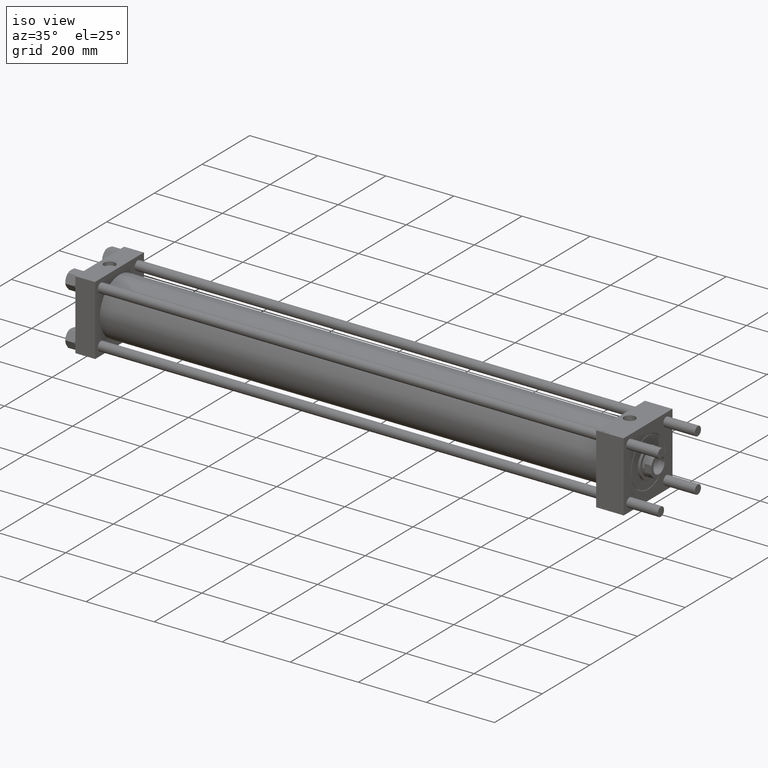
[diagram: clean part render]
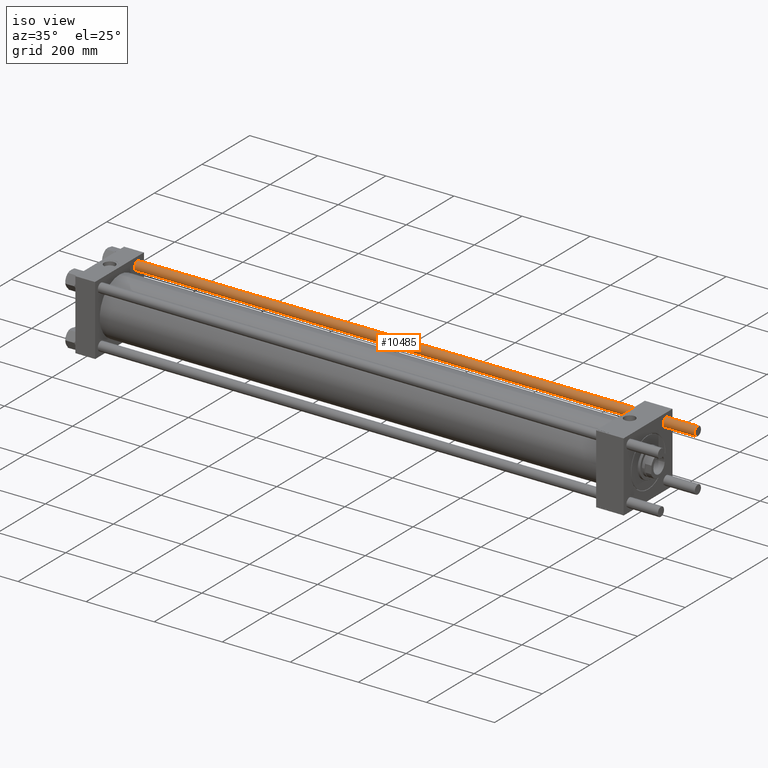
[diagram: same view with one face highlighted and labeled with its STEP entity id]
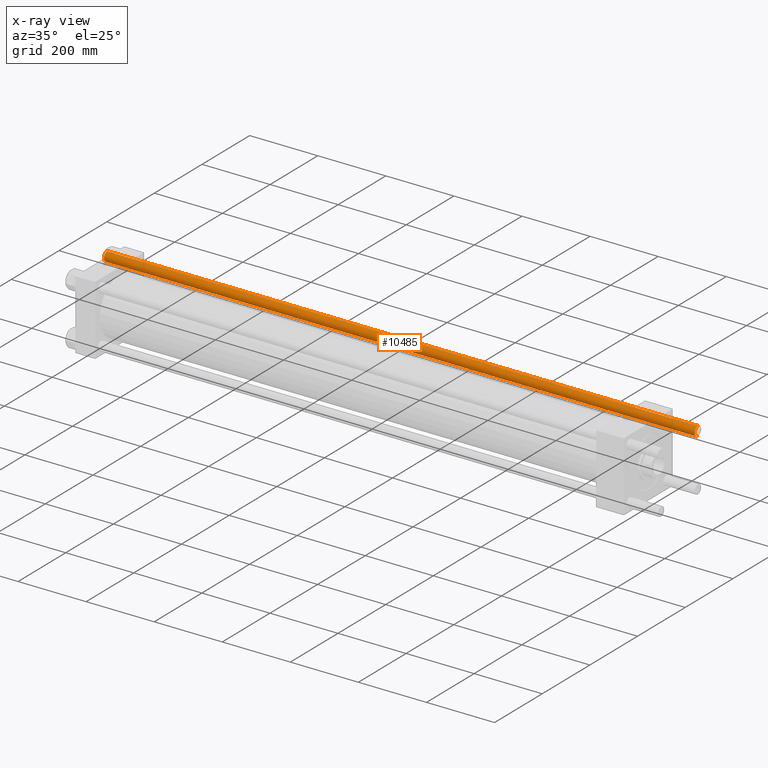
[diagram: x-ray of the same camera — body ghosted, the highlighted face saturated]
A machine part, iso view. The second image highlights one B-rep face of the part: STEP entity #10485.
The next image is the same camera in x-ray: the body ghosted, the highlighted face saturated — about 0% of this face is hidden behind the body in this view.
In plain terms, the highlighted cylindrical surface (edge-blend (fillet) strip) has radius 13.5 mm, axis along (1, -0, -0).
Its self-contained STEP definition (entity closure, byte-faithful):
#853 = CYLINDRICAL_SURFACE ( 'NONE', #10533, 13.50000000000000000 ) ;
#2141 = DIRECTION ( 'NONE',  ( -0.000000000000000000, -0.000000000000000000, 1.000000000000000000 ) ) ;
#4712 = DIRECTION ( 'NONE',  ( -0.000000000000000000, -0.000000000000000000, -1.000000000000000000 ) ) ;
#7902 = CARTESIAN_POINT ( 'NONE',  ( 13.50000000000000000, 1.653273178848926867E-15, 1735.500000000000000 ) ) ;
#8077 = VERTEX_POINT ( 'NONE', #40473 ) ;
#8083 = CARTESIAN_POINT ( 'NONE',  ( 13.50000000000000000, 1.653273178848926867E-15, 0.5000000000001669775 ) ) ;
#10101 = EDGE_CURVE ( 'NONE', #32121, #8077, #14589, .T. ) ;
#10369 = ORIENTED_EDGE ( 'NONE', *, *, #46238, .T. ) ;
#10485 = ADVANCED_FACE ( 'NONE', ( #39664 ), #853, .T. ) ;
#10533 = AXIS2_PLACEMENT_3D ( 'NONE', #22002, #22854, #30985 ) ;
#14589 = LINE ( 'NONE', #29055, #27202 ) ;
#16464 = VECTOR ( 'NONE', #4712, 1000.000000000000000 ) ;
#19801 = DIRECTION ( 'NONE',  ( 1.000000000000000000, 0.000000000000000000, 0.000000000000000000 ) ) ;
#22002 = CARTESIAN_POINT ( 'NONE',  ( 0.000000000000000000, 0.000000000000000000, 1736.000000000000000 ) ) ;
#22854 = DIRECTION ( 'NONE',  ( -0.000000000000000000, -0.000000000000000000, -1.000000000000000000 ) ) ;
#25118 = CARTESIAN_POINT ( 'NONE',  ( 0.000000000000000000, 0.000000000000000000, 1735.500000000000000 ) ) ;
#25851 = CIRCLE ( 'NONE', #30475, 13.50000000000000000 ) ;
#26727 = LINE ( 'NONE', #44084, #16464 ) ;
#26750 = VERTEX_POINT ( 'NONE', #8083 ) ;
#27202 = VECTOR ( 'NONE', #37174, 1000.000000000000000 ) ;
#27544 = ORIENTED_EDGE ( 'NONE', *, *, #10101, .T. ) ;
#28791 = CARTESIAN_POINT ( 'NONE',  ( -13.50000000000000000, 0.000000000000000000, 1735.500000000000000 ) ) ;
#28877 = AXIS2_PLACEMENT_3D ( 'NONE', #46141, #2141, #19801 ) ;
#29055 = CARTESIAN_POINT ( 'NONE',  ( -13.50000000000000000, 0.000000000000000000, 1736.000000000000000 ) ) ;
#29101 = EDGE_CURVE ( 'NONE', #31411, #26750, #26727, .T. ) ;
#29177 = DIRECTION ( 'NONE',  ( 0.000000000000000000, 0.000000000000000000, -1.000000000000000000 ) ) ;
#30475 = AXIS2_PLACEMENT_3D ( 'NONE', #25118, #29177, #52304 ) ;
#30691 = CIRCLE ( 'NONE', #28877, 13.50000000000000000 ) ;
#30985 = DIRECTION ( 'NONE',  ( -1.000000000000000000, 0.000000000000000000, 0.000000000000000000 ) ) ;
#31411 = VERTEX_POINT ( 'NONE', #7902 ) ;
#32121 = VERTEX_POINT ( 'NONE', #28791 ) ;
#33252 = EDGE_LOOP ( 'NONE', ( #41420, #56039, #27544, #10369 ) ) ;
#37174 = DIRECTION ( 'NONE',  ( -0.000000000000000000, -0.000000000000000000, -1.000000000000000000 ) ) ;
#38357 = EDGE_CURVE ( 'NONE', #31411, #32121, #25851, .T. ) ;
#39664 = FACE_OUTER_BOUND ( 'NONE', #33252, .T. ) ;
#40473 = CARTESIAN_POINT ( 'NONE',  ( -13.50000000000000000, 0.000000000000000000, 0.5000000000001669775 ) ) ;
#41420 = ORIENTED_EDGE ( 'NONE', *, *, #29101, .F. ) ;
#44084 = CARTESIAN_POINT ( 'NONE',  ( 13.50000000000000000, 1.653273178848926867E-15, 1736.000000000000000 ) ) ;
#46141 = CARTESIAN_POINT ( 'NONE',  ( 0.000000000000000000, 0.000000000000000000, 0.5000000000001669775 ) ) ;
#46238 = EDGE_CURVE ( 'NONE', #8077, #26750, #30691, .T. ) ;
#52304 = DIRECTION ( 'NONE',  ( 1.000000000000000000, 0.000000000000000000, 0.000000000000000000 ) ) ;
#56039 = ORIENTED_EDGE ( 'NONE', *, *, #38357, .T. ) ;